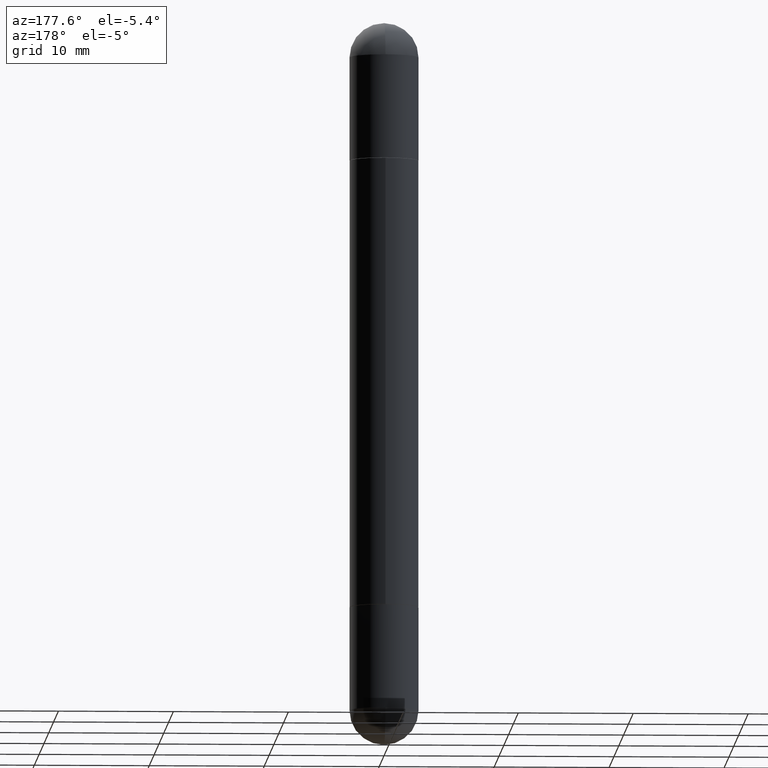
[diagram: clean part render]
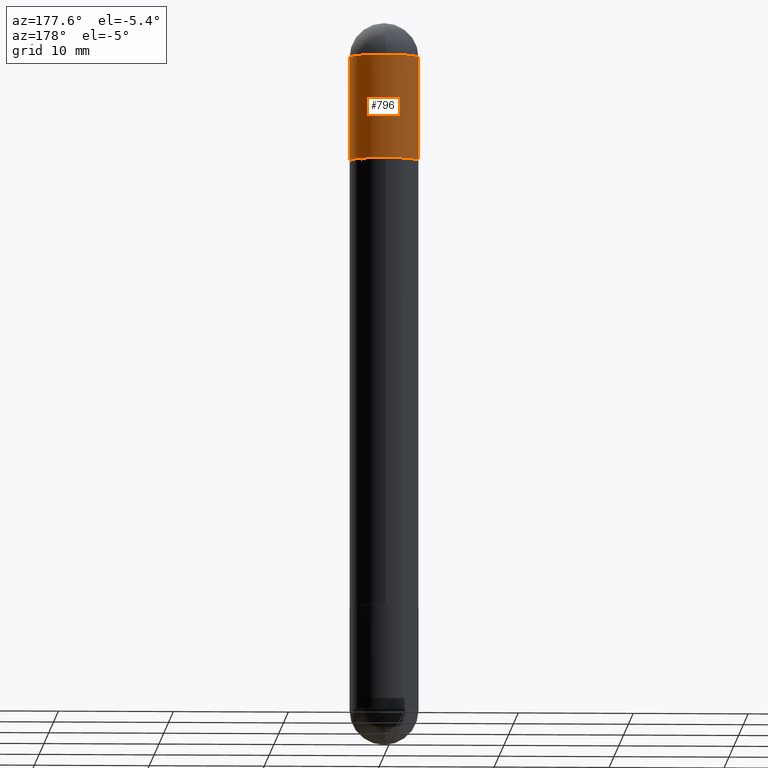
[diagram: same view with one face highlighted and labeled with its STEP entity id]
A machine part, auxiliary view. The second image highlights one B-rep face of the part: STEP entity #796.
In plain terms, the highlighted cylindrical surface (edge-blend (fillet) strip) has radius 2.9997 mm, axis along (-0, 0, -1).
Its self-contained STEP definition (entity closure, byte-faithful):
#20 = VECTOR ( 'NONE', #451, 39.37007874015748143 ) ;
#36 = EDGE_CURVE ( 'NONE', #225, #818, #680, .T. ) ;
#38 = CIRCLE ( 'NONE', #501, 0.1180999999999999966 ) ;
#43 = CARTESIAN_POINT ( 'NONE',  ( 5.776686413970530874E-29, -8.247577218615279626E-15, -0.1181000000000000383 ) ) ;
#52 = EDGE_CURVE ( 'NONE', #699, #516, #244, .T. ) ;
#87 = LINE ( 'NONE', #783, #439 ) ;
#98 = AXIS2_PLACEMENT_3D ( 'NONE', #133, #477, #618 ) ;
#113 = AXIS2_PLACEMENT_3D ( 'NONE', #701, #312, #329 ) ;
#124 = DIRECTION ( 'NONE',  ( 2.445468806185136597E-29, -3.491481338843145583E-15, 1.000000000000000000 ) ) ;
#133 = CARTESIAN_POINT ( 'NONE',  ( 5.776686413970530874E-29, -8.247577218615279626E-15, -0.1181000000000000383 ) ) ;
#206 = AXIS2_PLACEMENT_3D ( 'NONE', #43, #423, #413 ) ;
#219 = EDGE_CURVE ( 'NONE', #225, #699, #281, .T. ) ;
#225 = VERTEX_POINT ( 'NONE', #242 ) ;
#242 = CARTESIAN_POINT ( 'NONE',  ( 0.1180999999999999966, -8.453749191673964325E-15, -0.1181000000000000383 ) ) ;
#244 = CIRCLE ( 'NONE', #98, 0.1180999999999999966 ) ;
#251 = ORIENTED_EDGE ( 'NONE', *, *, #544, .T. ) ;
#281 = CIRCLE ( 'NONE', #206, 0.1180999999999999966 ) ;
#288 = DIRECTION ( 'NONE',  ( -2.445468806185136877E-29, 3.491481338843145188E-15, -1.000000000000000000 ) ) ;
#312 = DIRECTION ( 'NONE',  ( -2.445468806185136597E-29, 3.491481338843145583E-15, -1.000000000000000000 ) ) ;
#317 = CARTESIAN_POINT ( 'NONE',  ( -0.1180999999999999966, -6.818836485902398524E-15, -0.4724000000000001531 ) ) ;
#329 = DIRECTION ( 'NONE',  ( 1.000000000000000000, -6.982962677686266711E-15, 0.000000000000000000 ) ) ;
#378 = FACE_OUTER_BOUND ( 'NONE', #531, .T. ) ;
#413 = DIRECTION ( 'NONE',  ( 1.000000000000000000, -6.982962677686265133E-15, 0.000000000000000000 ) ) ;
#423 = DIRECTION ( 'NONE',  ( 2.445468806185136597E-29, -3.491481338843145583E-15, 1.000000000000000000 ) ) ;
#435 = CARTESIAN_POINT ( 'NONE',  ( -0.1180999999999999966, -6.818836485902399312E-15, -0.1181000000000000383 ) ) ;
#439 = VECTOR ( 'NONE', #288, 39.37007874015748143 ) ;
#447 = CARTESIAN_POINT ( 'NONE',  ( 8.246878922348049620E-16, 0.1180999999999916283, -0.1180999999999996219 ) ) ;
#448 = CARTESIAN_POINT ( 'NONE',  ( 0.1180999999999999966, -7.835233272497900762E-15, -0.4724000000000001531 ) ) ;
#451 = DIRECTION ( 'NONE',  ( -2.445468806185136877E-29, 3.491481338843145188E-15, -1.000000000000000000 ) ) ;
#453 = EDGE_CURVE ( 'NONE', #516, #659, #87, .T. ) ;
#477 = DIRECTION ( 'NONE',  ( 2.445468806185136597E-29, -3.491481338843145583E-15, 1.000000000000000000 ) ) ;
#490 = CARTESIAN_POINT ( 'NONE',  ( 0.1180999999999999966, -8.246878922347480654E-16, -2.480300000000000171 ) ) ;
#501 = AXIS2_PLACEMENT_3D ( 'NONE', #504, #124, #615 ) ;
#504 = CARTESIAN_POINT ( 'NONE',  ( 4.910256815939136430E-29, -7.010545380263152499E-15, -0.4724000000000001531 ) ) ;
#516 = VERTEX_POINT ( 'NONE', #435 ) ;
#531 = EDGE_LOOP ( 'NONE', ( #549, #816, #606, #747, #251 ) ) ;
#544 = EDGE_CURVE ( 'NONE', #818, #659, #38, .T. ) ;
#549 = ORIENTED_EDGE ( 'NONE', *, *, #453, .F. ) ;
#606 = ORIENTED_EDGE ( 'NONE', *, *, #219, .F. ) ;
#615 = DIRECTION ( 'NONE',  ( 1.000000000000000000, -6.982962677686265133E-15, 0.000000000000000000 ) ) ;
#618 = DIRECTION ( 'NONE',  ( 1.000000000000000000, -6.982962677686265133E-15, 0.000000000000000000 ) ) ;
#626 = CYLINDRICAL_SURFACE ( 'NONE', #113, 0.1180999999999999966 ) ;
#659 = VERTEX_POINT ( 'NONE', #317 ) ;
#680 = LINE ( 'NONE', #490, #20 ) ;
#699 = VERTEX_POINT ( 'NONE', #447 ) ;
#701 = CARTESIAN_POINT ( 'NONE',  ( 0.000000000000000000, 0.000000000000000000, -2.480300000000000171 ) ) ;
#747 = ORIENTED_EDGE ( 'NONE', *, *, #36, .T. ) ;
#783 = CARTESIAN_POINT ( 'NONE',  ( -0.1180999999999999966, 8.102248135368178351E-16, -2.480300000000000171 ) ) ;
#796 = ADVANCED_FACE ( 'NONE', ( #378 ), #626, .T. ) ;
#816 = ORIENTED_EDGE ( 'NONE', *, *, #52, .F. ) ;
#818 = VERTEX_POINT ( 'NONE', #448 ) ;